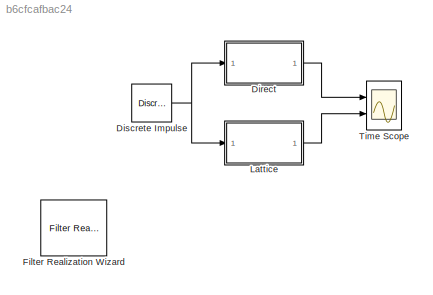
MODEL slx_b6cfcafbac24
KIND model
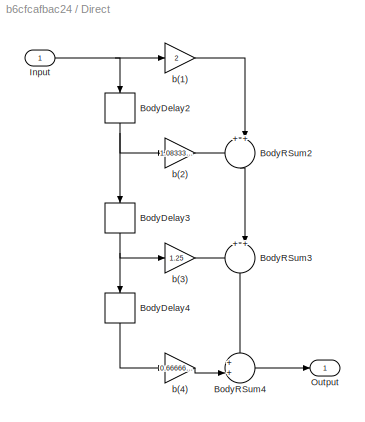
BLOCK [SubSystem] Direct
  ErrorFcn = dspFilterRealizedInBasicElemsAlgLoopErrFcnCallback
  Ports = [1, 1]
  RequestExecContextInheritance = off
  Tag = FilterWizardSubSystem
  UserDataPersistent = on
BLOCK [Delay] Direct/BodyDelay2
  DelayLength = 1
  InputPortMap = u0
  InputProcessing = Inherited
  Ports = [1, 1]
BLOCK [Delay] Direct/BodyDelay3
  DelayLength = 1
  InputPortMap = u0
  InputProcessing = Inherited
  Ports = [1, 1]
BLOCK [Delay] Direct/BodyDelay4
  DelayLength = 1
  InputPortMap = u0
  InputProcessing = Inherited
  Ports = [1, 1]
BLOCK [Sum] Direct/BodyRSum2
  IconShape = round
  InputSameDT = off
  Inputs = ++|
  Ports = [2, 1]
  RndMeth = Nearest
BLOCK [Sum] Direct/BodyRSum3
  IconShape = round
  InputSameDT = off
  Inputs = ++|
  Ports = [2, 1]
  RndMeth = Nearest
BLOCK [Sum] Direct/BodyRSum4
  IconShape = round
  InputSameDT = off
  Inputs = ++|
  Ports = [2, 1]
  RndMeth = Nearest
BLOCK [Inport] Direct/Input
  IconDisplay = Port number
BLOCK [Outport] Direct/Output
  IconDisplay = Port number
BLOCK [Gain] Direct/b(1)
  Gain = 2
  ParamDataTypeStr = float('double')
  RndMeth = Nearest
BLOCK [Gain] Direct/b(2)
  Gain = 1.0833333333333333
  ParamDataTypeStr = float('double')
  RndMeth = Nearest
BLOCK [Gain] Direct/b(3)
  Gain = 1.25
  ParamDataTypeStr = float('double')
  RndMeth = Nearest
BLOCK [Gain] Direct/b(4)
  Gain = 0.66666666666666663
  ParamDataTypeStr = float('double')
  RndMeth = Nearest
BLOCK [Reference] Discrete Impulse  REF=dspsrcs4/Discrete 
Impulse
  Delay = 0
  FrameSample = 1
  LastOutDataTypeStr = double
  OutDataTypeStr = double
  Ports = [0, 1]
  SampleTime = 1
  SourceBlock = dspsrcs4/Discrete \nImpulse
  SourceType = Discrete Impulse
  additionalParams = off
  allowOverrides = on
  dataType = double
  fracBitsMode = Best precision
  isSigned = on
  numFracBits = 15
  udDataType = sfix(16)
  wordLen = 16
BLOCK [Reference] Filter Realization Wizard  REF=dsparch4/Filter
Realization
Wizard
  Ports = []
  SourceBlock = dsparch4/Filter\nRealization\nWizard
  SourceType = Filter Realization Wizard
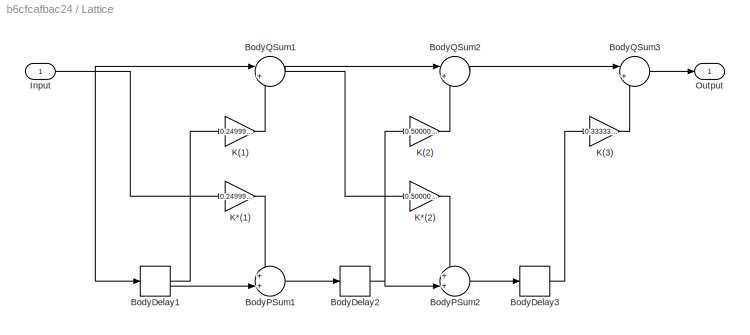
BLOCK [SubSystem] Lattice
  ErrorFcn = dspFilterRealizedInBasicElemsAlgLoopErrFcnCallback
  Ports = [1, 1]
  RequestExecContextInheritance = off
  Tag = FilterWizardSubSystem
  UserDataPersistent = on
BLOCK [Delay] Lattice/BodyDelay1
  DelayLength = 1
  InputPortMap = u0
  InputProcessing = Inherited
  Ports = [1, 1]
BLOCK [Delay] Lattice/BodyDelay2
  DelayLength = 1
  InputPortMap = u0
  InputProcessing = Inherited
  Ports = [1, 1]
BLOCK [Delay] Lattice/BodyDelay3
  DelayLength = 1
  InputPortMap = u0
  InputProcessing = Inherited
  Ports = [1, 1]
BLOCK [Sum] Lattice/BodyPSum1
  IconShape = round
  InputSameDT = off
  Inputs = ++|
  Ports = [2, 1]
  RndMeth = Nearest
BLOCK [Sum] Lattice/BodyPSum2
  IconShape = round
  InputSameDT = off
  Inputs = ++|
  Ports = [2, 1]
  RndMeth = Nearest
BLOCK [Sum] Lattice/BodyQSum1
  IconShape = round
  InputSameDT = off
  Inputs = |++
  Ports = [2, 1]
  RndMeth = Nearest
BLOCK [Sum] Lattice/BodyQSum2
  IconShape = round
  InputSameDT = off
  Inputs = |++
  Ports = [2, 1]
  RndMeth = Nearest
BLOCK [Sum] Lattice/BodyQSum3
  IconShape = round
  InputSameDT = off
  Inputs = |++
  Ports = [2, 1]
  RndMeth = Nearest
BLOCK [Inport] Lattice/Input
  IconDisplay = Port number
BLOCK [Gain] Lattice/K(1)
  Gain = 0.24999999999999997
  ParamDataTypeStr = float('double')
  RndMeth = Nearest
BLOCK [Gain] Lattice/K(2)
  Gain = 0.50000000000000011
  ParamDataTypeStr = float('double')
  RndMeth = Nearest
BLOCK [Gain] Lattice/K(3)
  Gain = 0.33333333333333331
  ParamDataTypeStr = float('double')
  RndMeth = Nearest
BLOCK [Gain] Lattice/K*(1)
  Gain = 0.24999999999999997
  ParamDataTypeStr = float('double')
  RndMeth = Nearest
BLOCK [Gain] Lattice/K*(2)
  Gain = 0.50000000000000011
  ParamDataTypeStr = float('double')
  RndMeth = Nearest
BLOCK [Outport] Lattice/Output
  IconDisplay = Port number
BLOCK [Scope] Time Scope
  DataFormat = Structure
  Floating = off
  NumInputPorts = 2
  Ports = [2]
  SampleTime = 0
  ShowLegends = off
  YMax = 3~2
  YMin = -2~-2
NET Direct/BodyDelay2:1 -> Direct/BodyDelay3:1, Direct/b(2):1
NET Direct/BodyDelay3:1 -> Direct/BodyDelay4:1, Direct/b(3):1
LINE Direct/BodyDelay4:1 -> Direct/b(4):1
LINE Direct/BodyRSum2:1 -> Direct/BodyRSum3:2
LINE Direct/BodyRSum3:1 -> Direct/BodyRSum4:1
LINE Direct/BodyRSum4:1 -> Direct/Output:1
NET Direct/Input:1 -> Direct/BodyDelay2:1, Direct/b(1):1
LINE Direct/b(1):1 -> Direct/BodyRSum2:2
LINE Direct/b(2):1 -> Direct/BodyRSum2:1
LINE Direct/b(3):1 -> Direct/BodyRSum3:1
LINE Direct/b(4):1 -> Direct/BodyRSum4:2
LINE Direct:1 -> Time Scope:1
NET Discrete Impulse:1 -> Direct:1, Lattice:1
NET Lattice/BodyDelay1:1 -> Lattice/BodyPSum1:2, Lattice/K(1):1
NET Lattice/BodyDelay2:1 -> Lattice/BodyPSum2:2, Lattice/K(2):1
LINE Lattice/BodyDelay3:1 -> Lattice/K(3):1
LINE Lattice/BodyPSum1:1 -> Lattice/BodyDelay2:1
LINE Lattice/BodyPSum2:1 -> Lattice/BodyDelay3:1
NET Lattice/BodyQSum1:1 -> Lattice/BodyQSum2:1, Lattice/K*(2):1
LINE Lattice/BodyQSum2:1 -> Lattice/BodyQSum3:1
LINE Lattice/BodyQSum3:1 -> Lattice/Output:1
NET Lattice/Input:1 -> Lattice/BodyDelay1:1, Lattice/BodyQSum1:1, Lattice/K*(1):1
LINE Lattice/K(1):1 -> Lattice/BodyQSum1:2
LINE Lattice/K(2):1 -> Lattice/BodyQSum2:2
LINE Lattice/K(3):1 -> Lattice/BodyQSum3:2
LINE Lattice/K*(1):1 -> Lattice/BodyPSum1:1
LINE Lattice/K*(2):1 -> Lattice/BodyPSum2:1
LINE Lattice:1 -> Time Scope:2
note: NET lines group one-source signal fan-out (src -> all destinations, sorted); 1:1 wires keep LINE
